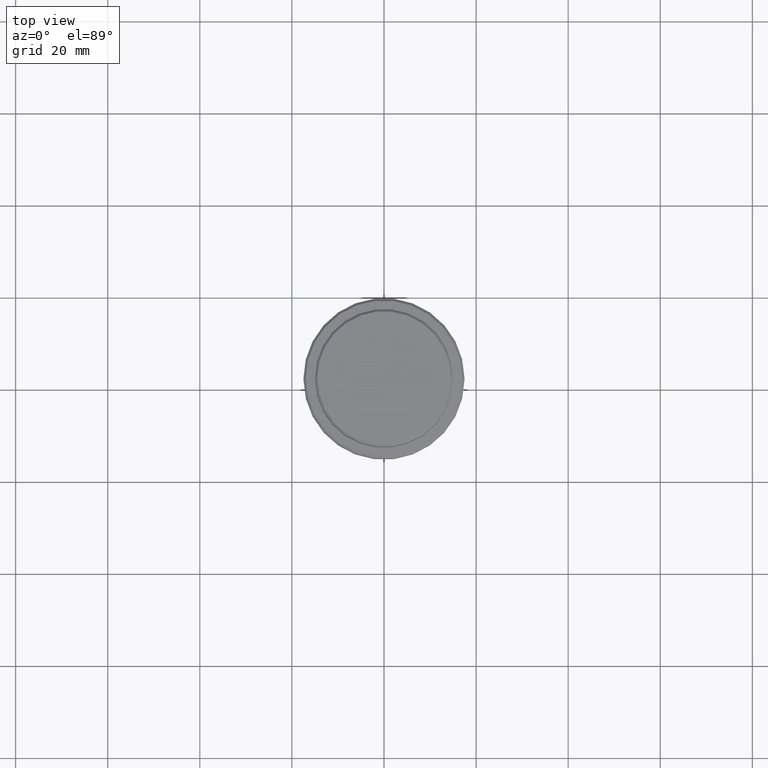
[diagram: clean part render]
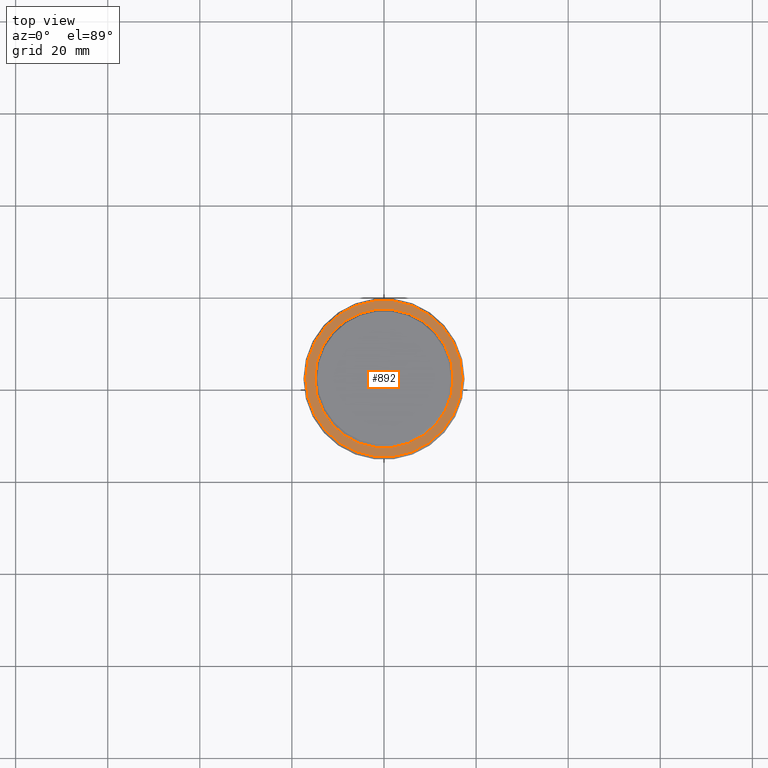
[diagram: same view with one face highlighted and labeled with its STEP entity id]
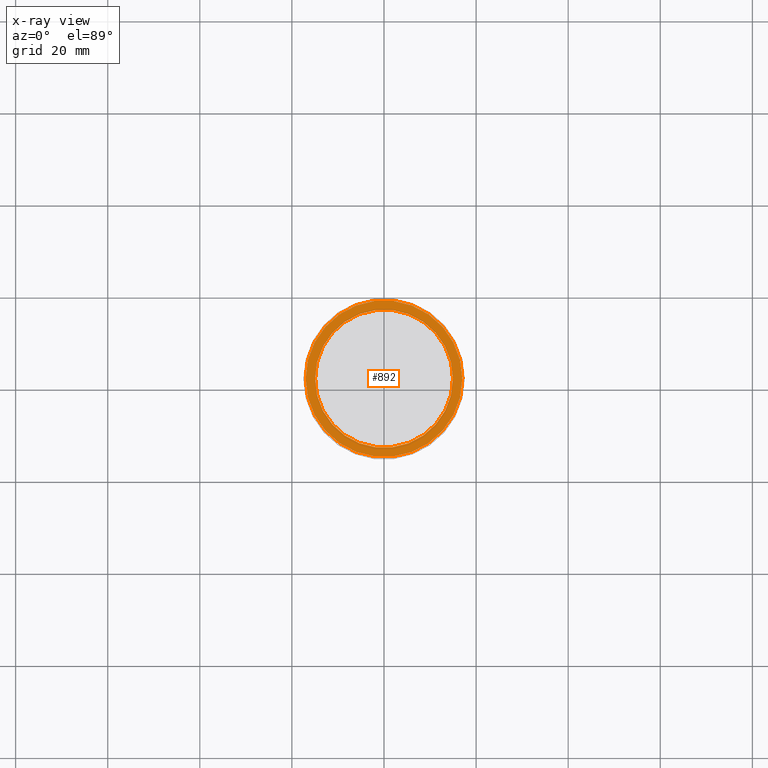
[diagram: x-ray of the same camera — body ghosted, the highlighted face saturated]
A machine part, top view. The second image highlights one B-rep face of the part: STEP entity #892.
The next image is the same camera in x-ray: the body ghosted, the highlighted face saturated — about 0% of this face is hidden behind the body in this view.
In plain terms, the highlighted planar face has unit normal (0, -0, 1).
Its self-contained STEP definition (entity closure, byte-faithful):
#5 = ORIENTED_EDGE ( 'NONE', *, *, #688, .T. ) ;
#20 = DIRECTION ( 'NONE',  ( 0.000000000000000000, -0.000000000000000000, 1.000000000000000000 ) ) ;
#126 = EDGE_LOOP ( 'NONE', ( #868, #5 ) ) ;
#148 = VERTEX_POINT ( 'NONE', #1379 ) ;
#165 = FACE_OUTER_BOUND ( 'NONE', #853, .T. ) ;
#177 = DIRECTION ( 'NONE',  ( 1.000000000000000000, 0.000000000000000000, 0.000000000000000000 ) ) ;
#182 = CARTESIAN_POINT ( 'NONE',  ( 0.000000000000000000, 0.000000000000000000, -8.999999999999987566 ) ) ;
#193 = CARTESIAN_POINT ( 'NONE',  ( 0.000000000000000000, 0.000000000000000000, -8.999999999999987566 ) ) ;
#225 = CARTESIAN_POINT ( 'NONE',  ( 0.000000000000000000, 14.49999999999999467, -8.999999999999987566 ) ) ;
#235 = CIRCLE ( 'NONE', #433, 16.99999999999998579 ) ;
#364 = AXIS2_PLACEMENT_3D ( 'NONE', #1367, #900, #177 ) ;
#388 = AXIS2_PLACEMENT_3D ( 'NONE', #225, #20, #560 ) ;
#433 = AXIS2_PLACEMENT_3D ( 'NONE', #182, #1144, #1404 ) ;
#532 = DIRECTION ( 'NONE',  ( 0.000000000000000000, 0.000000000000000000, -1.000000000000000000 ) ) ;
#560 = DIRECTION ( 'NONE',  ( 1.000000000000000000, 0.000000000000000000, 0.000000000000000000 ) ) ;
#600 = PLANE ( 'NONE',  #388 ) ;
#655 = EDGE_CURVE ( 'NONE', #148, #1031, #1107, .T. ) ;
#688 = EDGE_CURVE ( 'NONE', #849, #716, #1020, .T. ) ;
#689 = AXIS2_PLACEMENT_3D ( 'NONE', #193, #532, #1313 ) ;
#700 = CARTESIAN_POINT ( 'NONE',  ( -14.99999999999999467, 1.836970198721029194E-15, -8.999999999999987566 ) ) ;
#716 = VERTEX_POINT ( 'NONE', #1242 ) ;
#784 = DIRECTION ( 'NONE',  ( 1.000000000000000000, 0.000000000000000000, 0.000000000000000000 ) ) ;
#814 = AXIS2_PLACEMENT_3D ( 'NONE', #888, #1329, #784 ) ;
#849 = VERTEX_POINT ( 'NONE', #700 ) ;
#853 = EDGE_LOOP ( 'NONE', ( #1097, #893 ) ) ;
#868 = ORIENTED_EDGE ( 'NONE', *, *, #920, .T. ) ;
#888 = CARTESIAN_POINT ( 'NONE',  ( 0.000000000000000000, 0.000000000000000000, -8.999999999999987566 ) ) ;
#892 = ADVANCED_FACE ( 'NONE', ( #165, #1219 ), #600, .T. ) ;
#893 = ORIENTED_EDGE ( 'NONE', *, *, #1039, .T. ) ;
#900 = DIRECTION ( 'NONE',  ( 0.000000000000000000, 0.000000000000000000, -1.000000000000000000 ) ) ;
#920 = EDGE_CURVE ( 'NONE', #716, #849, #1042, .T. ) ;
#1020 = CIRCLE ( 'NONE', #364, 14.99999999999999467 ) ;
#1031 = VERTEX_POINT ( 'NONE', #1108 ) ;
#1039 = EDGE_CURVE ( 'NONE', #1031, #148, #235, .T. ) ;
#1042 = CIRCLE ( 'NONE', #689, 14.99999999999999467 ) ;
#1097 = ORIENTED_EDGE ( 'NONE', *, *, #655, .T. ) ;
#1107 = CIRCLE ( 'NONE', #814, 16.99999999999998579 ) ;
#1108 = CARTESIAN_POINT ( 'NONE',  ( 16.99999999999998579, 2.112515728529183278E-15, -8.999999999999987566 ) ) ;
#1144 = DIRECTION ( 'NONE',  ( -0.000000000000000000, -0.000000000000000000, 1.000000000000000000 ) ) ;
#1219 = FACE_BOUND ( 'NONE', #126, .T. ) ;
#1242 = CARTESIAN_POINT ( 'NONE',  ( 14.99999999999999467, 0.000000000000000000, -8.999999999999987566 ) ) ;
#1313 = DIRECTION ( 'NONE',  ( 1.000000000000000000, 0.000000000000000000, 0.000000000000000000 ) ) ;
#1329 = DIRECTION ( 'NONE',  ( -0.000000000000000000, -0.000000000000000000, 1.000000000000000000 ) ) ;
#1367 = CARTESIAN_POINT ( 'NONE',  ( 0.000000000000000000, 0.000000000000000000, -8.999999999999987566 ) ) ;
#1379 = CARTESIAN_POINT ( 'NONE',  ( -16.99999999999998579, 0.000000000000000000, -8.999999999999987566 ) ) ;
#1404 = DIRECTION ( 'NONE',  ( 1.000000000000000000, 0.000000000000000000, 0.000000000000000000 ) ) ;